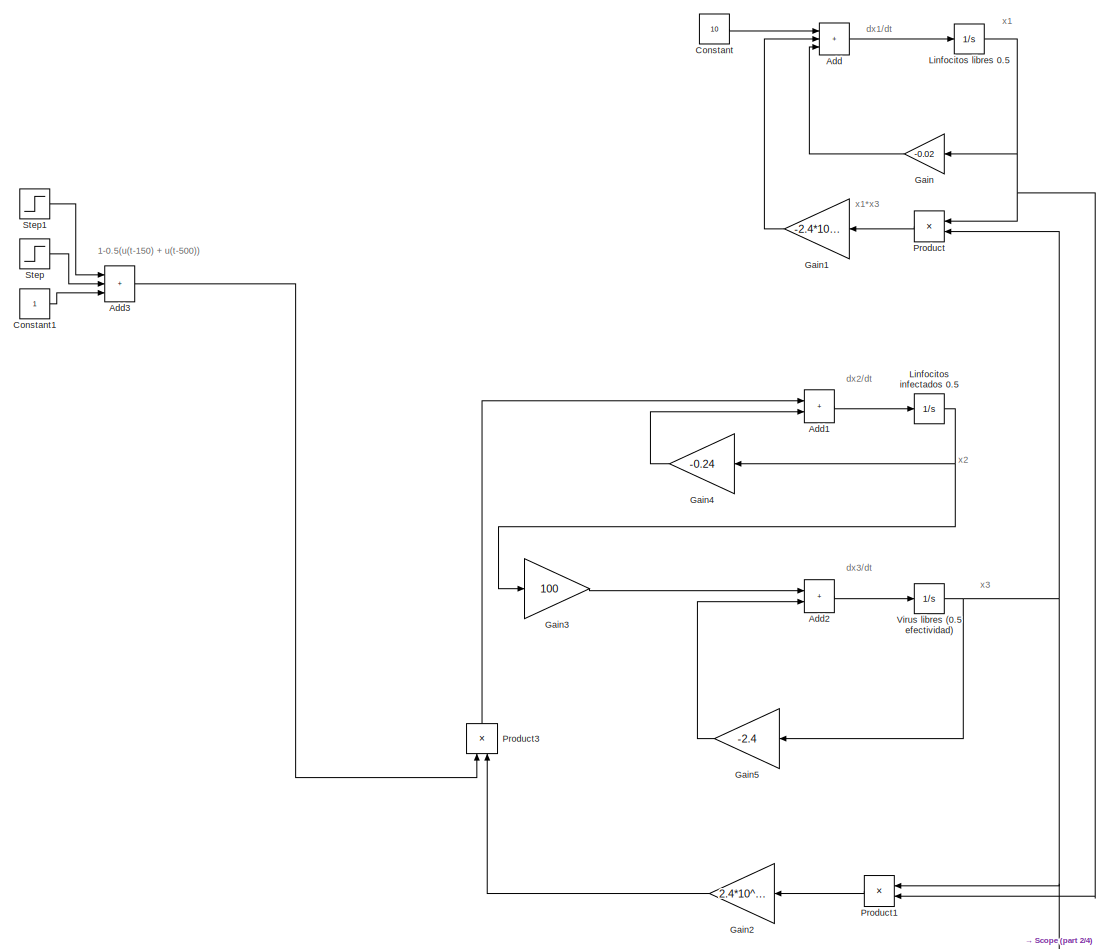
[diagram: root canvas - part 1/4, full width, top band]
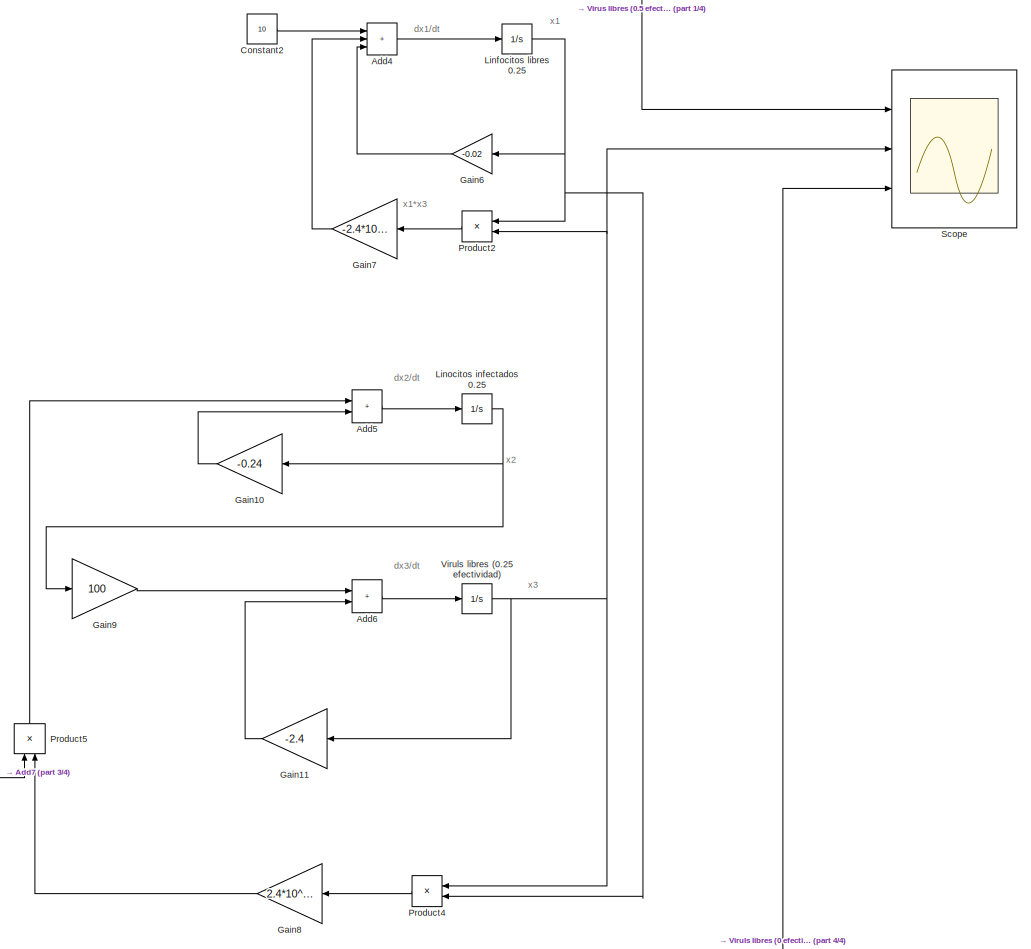
[diagram: root canvas - part 2/4, central region]
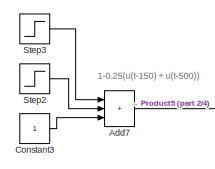
[diagram: root canvas - part 3/4, middle left region]
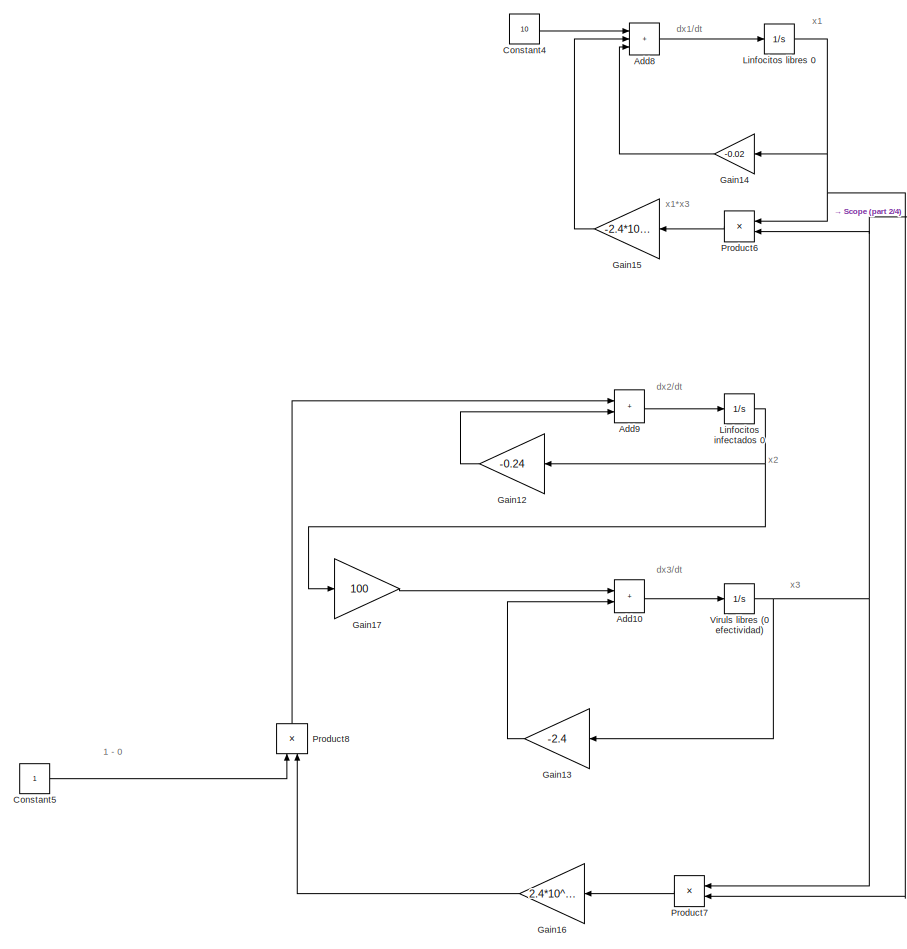
[diagram: root canvas - part 4/4, bottom center region]
MODEL slx_2b829e4b8103
KIND model
CONFIG AbsTol = auto
CONFIG EnableMultiTasking = off
CONFIG FixedStep = auto
CONFIG MaxStep = auto
CONFIG MinStep = auto
CONFIG RelTol = 1e-3
CONFIG SampleTimeConstraint = Unconstrained
CONFIG SolverName = VariableStepAuto
CONFIG StartTime = 0.0
CONFIG StopTime = 1000
BLOCK [Sum] Add
  IconShape = rectangular
  Inputs = +++
  Ports = [3, 1]
BLOCK [Sum] Add1
  IconShape = rectangular
  Ports = [2, 1]
BLOCK [Sum] Add10
  IconShape = rectangular
  Ports = [2, 1]
BLOCK [Sum] Add2
  IconShape = rectangular
  Ports = [2, 1]
BLOCK [Sum] Add3
  IconShape = rectangular
  Inputs = +++
  Ports = [3, 1]
BLOCK [Sum] Add4
  IconShape = rectangular
  Inputs = +++
  Ports = [3, 1]
BLOCK [Sum] Add5
  IconShape = rectangular
  Ports = [2, 1]
BLOCK [Sum] Add6
  IconShape = rectangular
  Ports = [2, 1]
BLOCK [Sum] Add7
  IconShape = rectangular
  Inputs = +++
  Ports = [3, 1]
BLOCK [Sum] Add8
  IconShape = rectangular
  Inputs = +++
  Ports = [3, 1]
BLOCK [Sum] Add9
  IconShape = rectangular
  Ports = [2, 1]
BLOCK [Constant] Constant
  Value = 10
BLOCK [Constant] Constant1
BLOCK [Constant] Constant2
  Value = 10
BLOCK [Constant] Constant3
BLOCK [Constant] Constant4
  Value = 10
BLOCK [Constant] Constant5
BLOCK [Gain] Gain
  Gain = -0.02
BLOCK [Gain] Gain1
  Gain = -2.4*10^-5
BLOCK [Gain] Gain10
  Gain = -0.24
BLOCK [Gain] Gain11
  Gain = -2.4
BLOCK [Gain] Gain12
  Gain = -0.24
BLOCK [Gain] Gain13
  Gain = -2.4
BLOCK [Gain] Gain14
  Gain = -0.02
BLOCK [Gain] Gain15
  Gain = -2.4*10^-5
BLOCK [Gain] Gain16
  Gain = 2.4*10^-5
BLOCK [Gain] Gain17
  Gain = 100
BLOCK [Gain] Gain2
  Gain = 2.4*10^-5
BLOCK [Gain] Gain3
  Gain = 100
BLOCK [Gain] Gain4
  Gain = -0.24
BLOCK [Gain] Gain5
  Gain = -2.4
BLOCK [Gain] Gain6
  Gain = -0.02
BLOCK [Gain] Gain7
  Gain = -2.4*10^-5
BLOCK [Gain] Gain8
  Gain = 2.4*10^-5
BLOCK [Gain] Gain9
  Gain = 100
BLOCK [Integrator] Linfocitos infectados 0
  Ports = [1, 1]
BLOCK [Integrator] Linfocitos infectados 0.5
  Ports = [1, 1]
BLOCK [Integrator] Linfocitos libres 0
  InitialCondition = 500
  Ports = [1, 1]
BLOCK [Integrator] Linfocitos libres 0.25
  InitialCondition = 500
  Ports = [1, 1]
BLOCK [Integrator] Linfocitos libres 0.5
  InitialCondition = 500
  Ports = [1, 1]
BLOCK [Integrator] Linocitos infectados 0.25
  Ports = [1, 1]
BLOCK [Product] Product
  Ports = [2, 1]
BLOCK [Product] Product1
  Ports = [2, 1]
BLOCK [Product] Product2
  Ports = [2, 1]
BLOCK [Product] Product3
  NameLocation = left
  Ports = [2, 1]
BLOCK [Product] Product4
  Ports = [2, 1]
BLOCK [Product] Product5
  NameLocation = left
  Ports = [2, 1]
BLOCK [Product] Product6
  Ports = [2, 1]
BLOCK [Product] Product7
  Ports = [2, 1]
BLOCK [Product] Product8
  NameLocation = left
  Ports = [2, 1]
BLOCK [Scope] Scope
  Floating = off
  NumInputPorts = 3
  Ports = [3]
  ScopeSpecificationString = Simulink.scopes.TimeScopeBlockCfg('CurrentConfiguration', extmgr.ConfigurationSet(extmgr.Configuration('Core','General UI',true),extmgr.Configuration('Core','Source UI',true),extmgr.Configuration('Sources','WiredSimulink',true),extmgr.Configuration('Visuals','Time Domain',true,'SerializedDisplays',{struct('MinYLimReal','-450.15834','MaxYLimReal','4053.60886','YLabelReal','','MinYLimMag',' 0.00000'...<+1805ch>
BLOCK [Step] Step
  After = -0.5
  SampleTime = 150
BLOCK [Step] Step1
  After = +0.5
  SampleTime = 500
BLOCK [Step] Step2
  After = -0.25
  SampleTime = 150
BLOCK [Step] Step3
  After = +0.25
  SampleTime = 500
BLOCK [Integrator] Viruls libres (0 efectividad)
  InitialCondition = 1
  Ports = [1, 1]
BLOCK [Integrator] Viruls libres (0.25 efectividad)
  InitialCondition = 1
  Ports = [1, 1]
BLOCK [Integrator] Virus libres (0.5 efectividad)
  InitialCondition = 1
  Ports = [1, 1]
ANNOTATION (root): 1 - 0
ANNOTATION (root): 1-0.25(u(t-150) + u(t-500))
ANNOTATION (root): 1-0.5(u(t-150) + u(t-500))
ANNOTATION (root): dx1/dt
ANNOTATION (root): dx2/dt
ANNOTATION (root): dx3/dt
ANNOTATION (root): x1
ANNOTATION (root): x1*x3
ANNOTATION (root): x2
ANNOTATION (root): x3
LINE Add10:1 -> Viruls libres (0 efectividad):1
LINE Add1:1 -> Linfocitos infectados 0.5:1
LINE Add2:1 -> Virus libres (0.5 efectividad):1
LINE Add3:1 -> Product3:1
LINE Add4:1 -> Linfocitos libres 0.25:1
LINE Add5:1 -> Linocitos infectados 0.25:1
LINE Add6:1 -> Viruls libres (0.25 efectividad):1
LINE Add7:1 -> Product5:1
LINE Add8:1 -> Linfocitos libres 0:1
LINE Add9:1 -> Linfocitos infectados 0:1
LINE Add:1 -> Linfocitos libres 0.5:1
LINE Constant1:1 -> Add3:3
LINE Constant2:1 -> Add4:1
LINE Constant3:1 -> Add7:3
LINE Constant4:1 -> Add8:1
LINE Constant5:1 -> Product8:1
LINE Constant:1 -> Add:1
LINE Gain10:1 -> Add5:2
LINE Gain11:1 -> Add6:2
LINE Gain12:1 -> Add9:2
LINE Gain13:1 -> Add10:2
LINE Gain14:1 -> Add8:3
LINE Gain15:1 -> Add8:2
LINE Gain16:1 -> Product8:2
LINE Gain17:1 -> Add10:1
LINE Gain1:1 -> Add:2
LINE Gain2:1 -> Product3:2
LINE Gain3:1 -> Add2:1
LINE Gain4:1 -> Add1:2
LINE Gain5:1 -> Add2:2
LINE Gain6:1 -> Add4:3
LINE Gain7:1 -> Add4:2
LINE Gain8:1 -> Product5:2
LINE Gain9:1 -> Add6:1
LINE Gain:1 -> Add:3
NET Linfocitos infectados 0.5:1 -> Gain3:1, Gain4:1
NET Linfocitos infectados 0:1 -> Gain12:1, Gain17:1
NET Linfocitos libres 0.25:1 -> Gain6:1, Product2:1, Product4:2
NET Linfocitos libres 0.5:1 -> Gain:1, Product1:2, Product:1
NET Linfocitos libres 0:1 -> Gain14:1, Product6:1, Product7:2
NET Linocitos infectados 0.25:1 -> Gain10:1, Gain9:1
LINE Product1:1 -> Gain2:1
LINE Product2:1 -> Gain7:1
LINE Product3:1 -> Add1:1
LINE Product4:1 -> Gain8:1
LINE Product5:1 -> Add5:1
LINE Product6:1 -> Gain15:1
LINE Product7:1 -> Gain16:1
LINE Product8:1 -> Add9:1
LINE Product:1 -> Gain1:1
LINE Step1:1 -> Add3:1
LINE Step2:1 -> Add7:2
LINE Step3:1 -> Add7:1
LINE Step:1 -> Add3:2
NET Viruls libres (0 efectividad):1 -> Gain13:1, Product6:2, Product7:1, Scope:3
NET Viruls libres (0.25 efectividad):1 -> Gain11:1, Product2:2, Product4:1, Scope:2
NET Virus libres (0.5 efectividad):1 -> Gain5:1, Product1:1, Product:2, Scope:1
note: NET lines group one-source signal fan-out (src -> all destinations, sorted); 1:1 wires keep LINE
